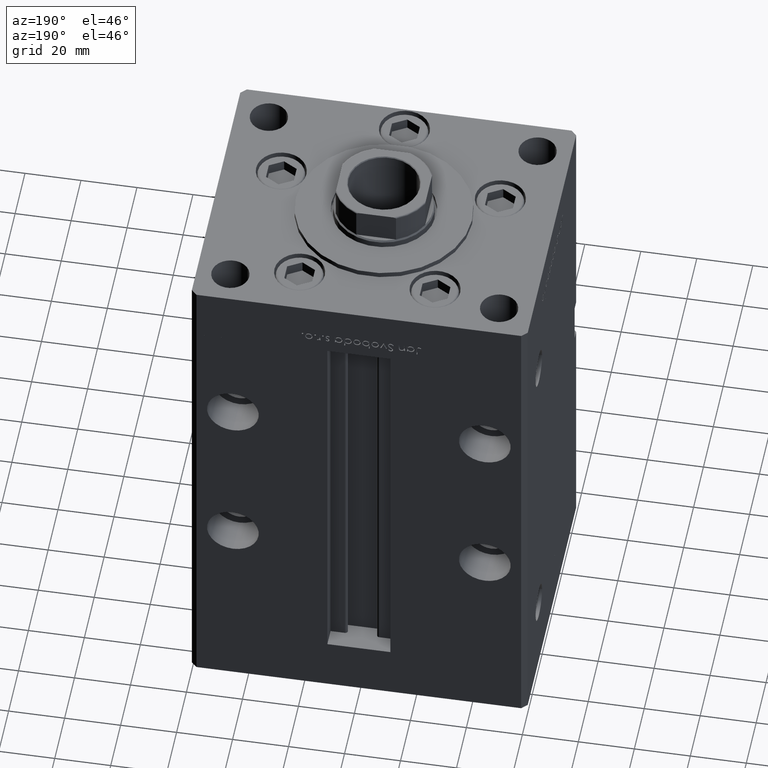
[diagram: clean part render]
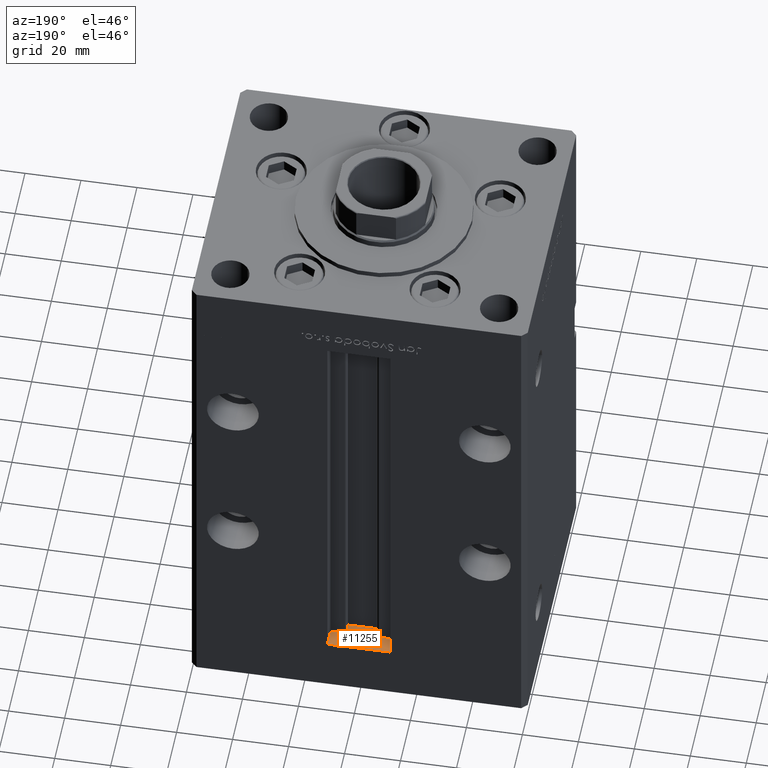
[diagram: same view with one face highlighted and labeled with its STEP entity id]
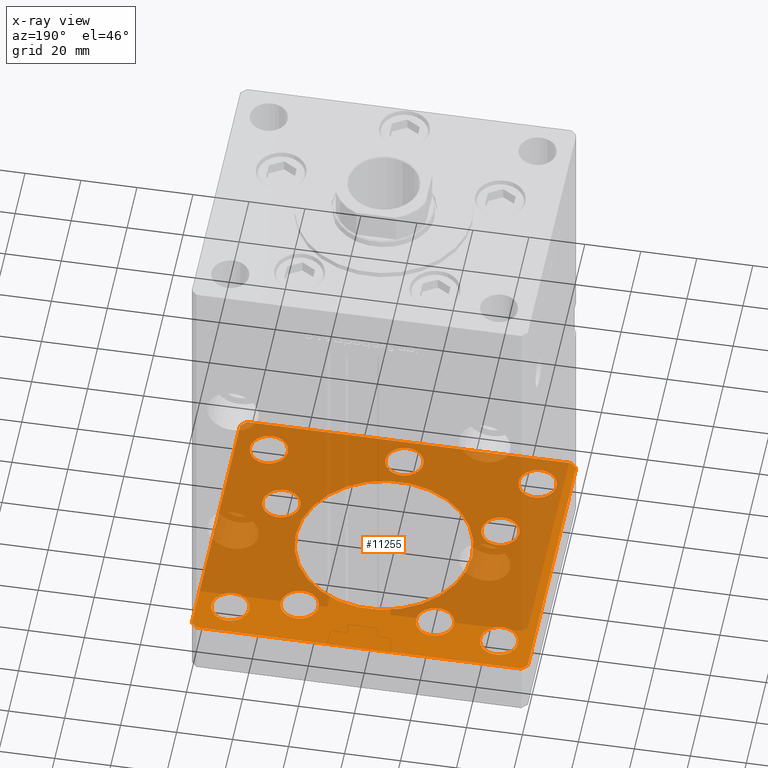
[diagram: x-ray of the same camera — body ghosted, the highlighted face saturated]
A machine part, auxiliary view. The second image highlights one B-rep face of the part: STEP entity #11255.
The next image is the same camera in x-ray: the body ghosted, the highlighted face saturated — about 74% of this face is hidden behind the body in this view.
In plain terms, the highlighted planar face has unit normal (0, 0, -1).
Its self-contained STEP definition (entity closure, byte-faithful):
#24 = DIRECTION ( 'NONE',  ( 0.000000000000000000, 0.000000000000000000, 1.000000000000000000 ) ) ;
#100 = VECTOR ( 'NONE', #38194, 1000.000000000000000 ) ;
#188 = ORIENTED_EDGE ( 'NONE', *, *, #35790, .F. ) ;
#264 = AXIS2_PLACEMENT_3D ( 'NONE', #34793, #51165, #10356 ) ;
#509 = AXIS2_PLACEMENT_3D ( 'NONE', #31123, #19309, #19577 ) ;
#772 = ORIENTED_EDGE ( 'NONE', *, *, #42279, .F. ) ;
#905 = CARTESIAN_POINT ( 'NONE',  ( -57.99999999999997868, -51.00000000000001421, -20.00000000000000000 ) ) ;
#957 = CARTESIAN_POINT ( 'NONE',  ( -57.99999999999997868, -51.00000000000001421, -20.00000000000000000 ) ) ;
#1073 = EDGE_CURVE ( 'NONE', #44712, #37887, #11297, .T. ) ;
#1766 = ORIENTED_EDGE ( 'NONE', *, *, #41484, .T. ) ;
#1906 = DIRECTION ( 'NONE',  ( 0.000000000000000000, -0.000000000000000000, -1.000000000000000000 ) ) ;
#2053 = CARTESIAN_POINT ( 'NONE',  ( 17.44288941894911460, 33.71875000000000711, -20.00000000000000000 ) ) ;
#2096 = VERTEX_POINT ( 'NONE', #44542 ) ;
#2157 = EDGE_LOOP ( 'NONE', ( #22757, #21681 ) ) ;
#2180 = ORIENTED_EDGE ( 'NONE', *, *, #7366, .F. ) ;
#2307 = CARTESIAN_POINT ( 'NONE',  ( 41.25000000000000000, -38.99999999999999289, -20.00000000000000000 ) ) ;
#2317 = CARTESIAN_POINT ( 'NONE',  ( -24.19288941894912170, 33.71875000000000000, -20.00000000000000000 ) ) ;
#2349 = CARTESIAN_POINT ( 'NONE',  ( 58.00000000000000000, -51.00000000000000711, -20.00000000000000000 ) ) ;
#2379 = CARTESIAN_POINT ( 'NONE',  ( -48.00000000000000000, 39.00000000000000000, -20.00000000000000000 ) ) ;
#2641 = DIRECTION ( 'NONE',  ( 1.000000000000000000, 0.000000000000000000, 0.000000000000000000 ) ) ;
#2689 = EDGE_CURVE ( 'NONE', #40068, #43463, #44611, .T. ) ;
#3042 = DIRECTION ( 'NONE',  ( -0.000000000000000000, 0.000000000000000000, 1.000000000000000000 ) ) ;
#3135 = EDGE_CURVE ( 'NONE', #35703, #47058, #24171, .T. ) ;
#3181 = CARTESIAN_POINT ( 'NONE',  ( -41.25000000000000000, 39.00000000000000000, -20.00000000000000000 ) ) ;
#3358 = VERTEX_POINT ( 'NONE', #957 ) ;
#3366 = CARTESIAN_POINT ( 'NONE',  ( -45.87657522565562829, -13.83333333333333925, -20.00000000000000000 ) ) ;
#3411 = DIRECTION ( 'NONE',  ( 1.000000000000000000, 0.000000000000000000, 0.000000000000000000 ) ) ;
#3587 = CARTESIAN_POINT ( 'NONE',  ( 24.19288941894911460, 33.71875000000000711, -20.00000000000000000 ) ) ;
#3784 = CARTESIAN_POINT ( 'NONE',  ( 48.00000000000000000, 38.99999999999999289, -20.00000000000000000 ) ) ;
#3849 = CARTESIAN_POINT ( 'NONE',  ( -41.25000000000000000, -39.00000000000000000, -20.00000000000000000 ) ) ;
#3933 = CIRCLE ( 'NONE', #39095, 6.749999999999999112 ) ;
#5103 = CARTESIAN_POINT ( 'NONE',  ( -60.00000000000000000, -49.00000000000000000, -20.00000000000000000 ) ) ;
#5191 = DIRECTION ( 'NONE',  ( 1.000000000000000000, 1.196361017915039486E-16, 0.000000000000000000 ) ) ;
#5240 = EDGE_CURVE ( 'NONE', #41855, #46311, #36227, .T. ) ;
#5451 = CARTESIAN_POINT ( 'NONE',  ( 41.25000000000000000, 38.99999999999999289, -20.00000000000000000 ) ) ;
#5731 = FACE_BOUND ( 'NONE', #35017, .T. ) ;
#5909 = EDGE_CURVE ( 'NONE', #7283, #19480, #44856, .T. ) ;
#5988 = FACE_OUTER_BOUND ( 'NONE', #40517, .T. ) ;
#6777 = EDGE_CURVE ( 'NONE', #41878, #15329, #33706, .T. ) ;
#6789 = DIRECTION ( 'NONE',  ( 1.000000000000000000, 0.000000000000000000, 0.000000000000000000 ) ) ;
#6946 = VECTOR ( 'NONE', #46435, 1000.000000000000000 ) ;
#7193 = CIRCLE ( 'NONE', #19197, 6.749999999999999112 ) ;
#7283 = VERTEX_POINT ( 'NONE', #31268 ) ;
#7366 = EDGE_CURVE ( 'NONE', #46311, #41855, #7193, .T. ) ;
#7787 = EDGE_LOOP ( 'NONE', ( #25484, #772 ) ) ;
#7874 = DIRECTION ( 'NONE',  ( 0.000000000000000000, -0.000000000000000000, -1.000000000000000000 ) ) ;
#7880 = AXIS2_PLACEMENT_3D ( 'NONE', #17164, #29777, #45608 ) ;
#7958 = DIRECTION ( 'NONE',  ( 0.000000000000000000, -0.000000000000000000, -1.000000000000000000 ) ) ;
#8141 = VECTOR ( 'NONE', #5191, 1000.000000000000000 ) ;
#8381 = DIRECTION ( 'NONE',  ( -0.7071067811865451302, -0.7071067811865500152, 0.000000000000000000 ) ) ;
#8589 = ORIENTED_EDGE ( 'NONE', *, *, #41616, .F. ) ;
#8793 = DIRECTION ( 'NONE',  ( 1.000000000000000000, 0.000000000000000000, 0.000000000000000000 ) ) ;
#9146 = CIRCLE ( 'NONE', #9985, 6.749999999999999112 ) ;
#9321 = EDGE_LOOP ( 'NONE', ( #36742, #25160 ) ) ;
#9579 = DIRECTION ( 'NONE',  ( 1.000000000000000000, 0.000000000000000000, 0.000000000000000000 ) ) ;
#9759 = FACE_BOUND ( 'NONE', #26075, .T. ) ;
#9770 = EDGE_LOOP ( 'NONE', ( #43090, #49249 ) ) ;
#9985 = AXIS2_PLACEMENT_3D ( 'NONE', #41573, #21971, #17953 ) ;
#10356 = DIRECTION ( 'NONE',  ( 1.000000000000000000, 0.000000000000000000, 0.000000000000000000 ) ) ;
#10854 = AXIS2_PLACEMENT_3D ( 'NONE', #13001, #45225, #49245 ) ;
#10995 = EDGE_CURVE ( 'NONE', #50977, #18654, #26889, .T. ) ;
#11035 = ORIENTED_EDGE ( 'NONE', *, *, #48628, .F. ) ;
#11255 = ADVANCED_FACE ( 'NONE', ( #5731, #30164, #9759, #26139, #22111, #38470, #34446, #14057, #5988, #36289, #40318 ), #48375, .F. ) ;
#11297 = CIRCLE ( 'NONE', #42126, 31.50000000000000000 ) ;
#12139 = VERTEX_POINT ( 'NONE', #13234 ) ;
#12511 = EDGE_CURVE ( 'NONE', #36815, #12139, #51784, .T. ) ;
#12797 = VERTEX_POINT ( 'NONE', #33495 ) ;
#13001 = CARTESIAN_POINT ( 'NONE',  ( 48.00000000000000000, -38.99999999999999289, -20.00000000000000000 ) ) ;
#13088 = CARTESIAN_POINT ( 'NONE',  ( 48.00000000000000000, 38.99999999999999289, -20.00000000000000000 ) ) ;
#13234 = CARTESIAN_POINT ( 'NONE',  ( -54.75000000000000000, -39.00000000000000000, -20.00000000000000000 ) ) ;
#13269 = EDGE_LOOP ( 'NONE', ( #2180, #24393 ) ) ;
#13465 = ORIENTED_EDGE ( 'NONE', *, *, #13600, .F. ) ;
#13600 = EDGE_CURVE ( 'NONE', #48527, #3358, #40230, .T. ) ;
#13873 = DIRECTION ( 'NONE',  ( 0.000000000000000000, -0.000000000000000000, -1.000000000000000000 ) ) ;
#14057 = FACE_BOUND ( 'NONE', #30440, .T. ) ;
#14224 = EDGE_CURVE ( 'NONE', #24590, #32459, #26965, .T. ) ;
#14550 = LINE ( 'NONE', #38690, #51619 ) ;
#14854 = CARTESIAN_POINT ( 'NONE',  ( 0.000000000000000000, 0.000000000000000000, -20.00000000000000000 ) ) ;
#15329 = VERTEX_POINT ( 'NONE', #5451 ) ;
#15521 = DIRECTION ( 'NONE',  ( 0.000000000000000000, -0.000000000000000000, -1.000000000000000000 ) ) ;
#15811 = AXIS2_PLACEMENT_3D ( 'NONE', #2317, #34016, #9579 ) ;
#15833 = AXIS2_PLACEMENT_3D ( 'NONE', #23388, #39220, #31718 ) ;
#15867 = DIRECTION ( 'NONE',  ( 1.000000000000000000, 0.000000000000000000, 0.000000000000000000 ) ) ;
#15986 = EDGE_CURVE ( 'NONE', #3358, #2096, #37407, .T. ) ;
#16301 = LINE ( 'NONE', #40993, #42658 ) ;
#16463 = CARTESIAN_POINT ( 'NONE',  ( 30.94288941894911105, 33.71875000000000711, -20.00000000000000000 ) ) ;
#16527 = AXIS2_PLACEMENT_3D ( 'NONE', #21663, #13873, #8793 ) ;
#16784 = CARTESIAN_POINT ( 'NONE',  ( 32.37657522565562829, -13.83333333333332860, -20.00000000000000000 ) ) ;
#17164 = CARTESIAN_POINT ( 'NONE',  ( 39.12657522565562829, -13.83333333333332860, -20.00000000000000000 ) ) ;
#17381 = DIRECTION ( 'NONE',  ( 1.000000000000000000, 0.000000000000000000, 0.000000000000000000 ) ) ;
#17430 = AXIS2_PLACEMENT_3D ( 'NONE', #3784, #24, #15867 ) ;
#17735 = CARTESIAN_POINT ( 'NONE',  ( -31.50000000000000000, 3.857637417314161900E-15, -20.00000000000000000 ) ) ;
#17911 = DIRECTION ( 'NONE',  ( 0.000000000000000000, 0.000000000000000000, 1.000000000000000000 ) ) ;
#17914 = DIRECTION ( 'NONE',  ( 0.000000000000000000, -0.000000000000000000, -1.000000000000000000 ) ) ;
#17921 = EDGE_LOOP ( 'NONE', ( #11035, #34445 ) ) ;
#17953 = DIRECTION ( 'NONE',  ( 1.000000000000000000, 0.000000000000000000, 0.000000000000000000 ) ) ;
#18441 = CIRCLE ( 'NONE', #37288, 6.749999999999999112 ) ;
#18527 = EDGE_CURVE ( 'NONE', #12139, #36815, #3933, .T. ) ;
#18602 = CARTESIAN_POINT ( 'NONE',  ( 59.99999999999994316, 49.00000000000000000, -20.00000000000000000 ) ) ;
#18654 = VERTEX_POINT ( 'NONE', #40310 ) ;
#18735 = LINE ( 'NONE', #2349, #43845 ) ;
#18988 = EDGE_CURVE ( 'NONE', #47058, #35703, #9146, .T. ) ;
#19197 = AXIS2_PLACEMENT_3D ( 'NONE', #3587, #7874, #36854 ) ;
#19309 = DIRECTION ( 'NONE',  ( -0.000000000000000000, -0.000000000000000000, -1.000000000000000000 ) ) ;
#19480 = VERTEX_POINT ( 'NONE', #3366 ) ;
#19577 = DIRECTION ( 'NONE',  ( -1.000000000000000000, 0.000000000000000000, 0.000000000000000000 ) ) ;
#19734 = ORIENTED_EDGE ( 'NONE', *, *, #12511, .F. ) ;
#21120 = CIRCLE ( 'NONE', #10854, 6.749999999999999112 ) ;
#21663 = CARTESIAN_POINT ( 'NONE',  ( -24.19288941894912170, 33.71875000000000000, -20.00000000000000000 ) ) ;
#21681 = ORIENTED_EDGE ( 'NONE', *, *, #18988, .F. ) ;
#21971 = DIRECTION ( 'NONE',  ( 0.000000000000000000, -0.000000000000000000, -1.000000000000000000 ) ) ;
#22111 = FACE_BOUND ( 'NONE', #13269, .T. ) ;
#22308 = CARTESIAN_POINT ( 'NONE',  ( 5.082284216461515748E-15, -41.50000000000000000, -20.00000000000000000 ) ) ;
#22464 = ORIENTED_EDGE ( 'NONE', *, *, #18527, .F. ) ;
#22757 = ORIENTED_EDGE ( 'NONE', *, *, #3135, .F. ) ;
#22781 = CARTESIAN_POINT ( 'NONE',  ( 31.50000000000000000, 0.000000000000000000, -20.00000000000000000 ) ) ;
#23388 = CARTESIAN_POINT ( 'NONE',  ( 5.082284216461515748E-15, -41.50000000000000000, -20.00000000000000000 ) ) ;
#23406 = EDGE_CURVE ( 'NONE', #48576, #12797, #16301, .T. ) ;
#23556 = DIRECTION ( 'NONE',  ( 0.7071067811865474617, 0.7071067811865474617, 0.000000000000000000 ) ) ;
#24016 = ORIENTED_EDGE ( 'NONE', *, *, #26817, .F. ) ;
#24171 = CIRCLE ( 'NONE', #7880, 6.749999999999999112 ) ;
#24212 = DIRECTION ( 'NONE',  ( -0.000000000000000000, -0.000000000000000000, -1.000000000000000000 ) ) ;
#24393 = ORIENTED_EDGE ( 'NONE', *, *, #5240, .F. ) ;
#24570 = VERTEX_POINT ( 'NONE', #32370 ) ;
#24590 = VERTEX_POINT ( 'NONE', #52756 ) ;
#25160 = ORIENTED_EDGE ( 'NONE', *, *, #34701, .F. ) ;
#25164 = AXIS2_PLACEMENT_3D ( 'NONE', #14854, #3042, #6789 ) ;
#25484 = ORIENTED_EDGE ( 'NONE', *, *, #5909, .F. ) ;
#25621 = ORIENTED_EDGE ( 'NONE', *, *, #23406, .F. ) ;
#25962 = CARTESIAN_POINT ( 'NONE',  ( -39.12657522565562829, -13.83333333333333925, -20.00000000000000000 ) ) ;
#26075 = EDGE_LOOP ( 'NONE', ( #188, #33027 ) ) ;
#26130 = VECTOR ( 'NONE', #53111, 1000.000000000000114 ) ;
#26139 = FACE_BOUND ( 'NONE', #2157, .T. ) ;
#26215 = EDGE_CURVE ( 'NONE', #12797, #43305, #43008, .T. ) ;
#26525 = EDGE_CURVE ( 'NONE', #43305, #40068, #38908, .T. ) ;
#26536 = ORIENTED_EDGE ( 'NONE', *, *, #1073, .F. ) ;
#26817 = EDGE_CURVE ( 'NONE', #2096, #48576, #18735, .T. ) ;
#26889 = CIRCLE ( 'NONE', #44054, 6.749999999999999112 ) ;
#26965 = CIRCLE ( 'NONE', #15811, 6.749999999999999112 ) ;
#27796 = DIRECTION ( 'NONE',  ( 1.000000000000000000, 0.000000000000000000, 0.000000000000000000 ) ) ;
#27860 = CARTESIAN_POINT ( 'NONE',  ( -30.94288941894911815, 33.71875000000000000, -20.00000000000000000 ) ) ;
#28127 = EDGE_CURVE ( 'NONE', #43463, #48527, #14550, .T. ) ;
#28371 = CARTESIAN_POINT ( 'NONE',  ( 0.000000000000000000, 0.000000000000000000, -20.00000000000000000 ) ) ;
#28580 = VERTEX_POINT ( 'NONE', #35006 ) ;
#28744 = DIRECTION ( 'NONE',  ( 0.000000000000000000, -0.000000000000000000, -1.000000000000000000 ) ) ;
#28755 = AXIS2_PLACEMENT_3D ( 'NONE', #2379, #39410, #2641 ) ;
#29596 = CIRCLE ( 'NONE', #28755, 6.749999999999999112 ) ;
#29777 = DIRECTION ( 'NONE',  ( 0.000000000000000000, -0.000000000000000000, -1.000000000000000000 ) ) ;
#30056 = ORIENTED_EDGE ( 'NONE', *, *, #26215, .F. ) ;
#30164 = FACE_BOUND ( 'NONE', #7787, .T. ) ;
#30327 = CARTESIAN_POINT ( 'NONE',  ( -48.00000000000000000, -39.00000000000000000, -20.00000000000000000 ) ) ;
#30435 = CIRCLE ( 'NONE', #48432, 31.50000000000000000 ) ;
#30440 = EDGE_LOOP ( 'NONE', ( #31769, #1766 ) ) ;
#30735 = CARTESIAN_POINT ( 'NONE',  ( 45.87657522565562829, -13.83333333333332860, -20.00000000000000000 ) ) ;
#31123 = CARTESIAN_POINT ( 'NONE',  ( 48.00000000000000000, -38.99999999999999289, -20.00000000000000000 ) ) ;
#31268 = CARTESIAN_POINT ( 'NONE',  ( -32.37657522565562829, -13.83333333333333925, -20.00000000000000000 ) ) ;
#31673 = CARTESIAN_POINT ( 'NONE',  ( 57.99999999999993605, 51.00000000000000711, -20.00000000000000000 ) ) ;
#31718 = DIRECTION ( 'NONE',  ( 1.000000000000000000, 0.000000000000000000, 0.000000000000000000 ) ) ;
#31769 = ORIENTED_EDGE ( 'NONE', *, *, #10995, .T. ) ;
#31823 = CARTESIAN_POINT ( 'NONE',  ( -48.00000000000000000, 39.00000000000000000, -20.00000000000000000 ) ) ;
#31906 = DIRECTION ( 'NONE',  ( 1.000000000000000000, 0.000000000000000000, 0.000000000000000000 ) ) ;
#32132 = CIRCLE ( 'NONE', #15833, 6.749999999999999112 ) ;
#32370 = CARTESIAN_POINT ( 'NONE',  ( 6.750000000000004441, -41.50000000000000000, -20.00000000000000000 ) ) ;
#32459 = VERTEX_POINT ( 'NONE', #27860 ) ;
#32547 = CARTESIAN_POINT ( 'NONE',  ( -57.99999999999999289, 50.99999999999997868, -20.00000000000000000 ) ) ;
#32710 = CARTESIAN_POINT ( 'NONE',  ( -60.00000000000000000, 48.99999999999995737, -20.00000000000000000 ) ) ;
#33027 = ORIENTED_EDGE ( 'NONE', *, *, #41186, .F. ) ;
#33495 = CARTESIAN_POINT ( 'NONE',  ( 59.99999999999994316, 49.00000000000000000, -20.00000000000000000 ) ) ;
#33706 = CIRCLE ( 'NONE', #17430, 6.749999999999999112 ) ;
#33781 = AXIS2_PLACEMENT_3D ( 'NONE', #30327, #41614, #50715 ) ;
#33782 = ORIENTED_EDGE ( 'NONE', *, *, #26525, .F. ) ;
#34016 = DIRECTION ( 'NONE',  ( 0.000000000000000000, -0.000000000000000000, -1.000000000000000000 ) ) ;
#34445 = ORIENTED_EDGE ( 'NONE', *, *, #50065, .F. ) ;
#34446 = FACE_BOUND ( 'NONE', #9770, .T. ) ;
#34460 = EDGE_LOOP ( 'NONE', ( #19734, #22464 ) ) ;
#34525 = CIRCLE ( 'NONE', #16527, 6.749999999999999112 ) ;
#34701 = EDGE_CURVE ( 'NONE', #32459, #24590, #34525, .T. ) ;
#34714 = EDGE_CURVE ( 'NONE', #15329, #41878, #46520, .T. ) ;
#34793 = CARTESIAN_POINT ( 'NONE',  ( 24.19288941894911460, 33.71875000000000711, -20.00000000000000000 ) ) ;
#35006 = CARTESIAN_POINT ( 'NONE',  ( 54.75000000000000000, -38.99999999999999289, -20.00000000000000000 ) ) ;
#35017 = EDGE_LOOP ( 'NONE', ( #26536, #8589 ) ) ;
#35426 = AXIS2_PLACEMENT_3D ( 'NONE', #25962, #17914, #46876 ) ;
#35655 = CARTESIAN_POINT ( 'NONE',  ( -6.749999999999993783, -41.50000000000000000, -20.00000000000000000 ) ) ;
#35703 = VERTEX_POINT ( 'NONE', #30735 ) ;
#35790 = EDGE_CURVE ( 'NONE', #24570, #39091, #49090, .T. ) ;
#36227 = CIRCLE ( 'NONE', #264, 6.749999999999999112 ) ;
#36289 = FACE_BOUND ( 'NONE', #17921, .T. ) ;
#36742 = ORIENTED_EDGE ( 'NONE', *, *, #14224, .F. ) ;
#36815 = VERTEX_POINT ( 'NONE', #3849 ) ;
#36854 = DIRECTION ( 'NONE',  ( 1.000000000000000000, 0.000000000000000000, 0.000000000000000000 ) ) ;
#37033 = VECTOR ( 'NONE', #8381, 1000.000000000000114 ) ;
#37288 = AXIS2_PLACEMENT_3D ( 'NONE', #45633, #28744, #45114 ) ;
#37407 = LINE ( 'NONE', #905, #8141 ) ;
#37887 = VERTEX_POINT ( 'NONE', #17735 ) ;
#38106 = CARTESIAN_POINT ( 'NONE',  ( 60.00000000000001421, -48.99999999999999289, -20.00000000000000000 ) ) ;
#38194 = DIRECTION ( 'NONE',  ( -0.7071067811865487940, 0.7071067811865463515, 0.000000000000000000 ) ) ;
#38470 = FACE_BOUND ( 'NONE', #9321, .T. ) ;
#38690 = CARTESIAN_POINT ( 'NONE',  ( -60.00000000000000000, 48.99999999999995737, -20.00000000000000000 ) ) ;
#38908 = LINE ( 'NONE', #42683, #6946 ) ;
#39091 = VERTEX_POINT ( 'NONE', #35655 ) ;
#39095 = AXIS2_PLACEMENT_3D ( 'NONE', #49432, #24212, #49163 ) ;
#39220 = DIRECTION ( 'NONE',  ( 0.000000000000000000, -0.000000000000000000, -1.000000000000000000 ) ) ;
#39231 = DIRECTION ( 'NONE',  ( 0.000000000000000000, -1.000000000000000000, 0.000000000000000000 ) ) ;
#39410 = DIRECTION ( 'NONE',  ( 0.000000000000000000, 0.000000000000000000, 1.000000000000000000 ) ) ;
#39664 = AXIS2_PLACEMENT_3D ( 'NONE', #22308, #1906, #49708 ) ;
#39805 = ORIENTED_EDGE ( 'NONE', *, *, #15986, .F. ) ;
#40068 = VERTEX_POINT ( 'NONE', #52503 ) ;
#40127 = DIRECTION ( 'NONE',  ( 0.000000000000000000, 0.000000000000000000, 1.000000000000000000 ) ) ;
#40230 = LINE ( 'NONE', #52584, #26130 ) ;
#40310 = CARTESIAN_POINT ( 'NONE',  ( -54.75000000000000000, 39.00000000000000000, -20.00000000000000000 ) ) ;
#40318 = FACE_BOUND ( 'NONE', #34460, .T. ) ;
#40517 = EDGE_LOOP ( 'NONE', ( #13465, #50156, #41682, #33782, #30056, #25621, #24016, #39805 ) ) ;
#40993 = CARTESIAN_POINT ( 'NONE',  ( 60.00000000000001421, -48.99999999999999289, -20.00000000000000000 ) ) ;
#41186 = EDGE_CURVE ( 'NONE', #39091, #24570, #32132, .T. ) ;
#41385 = AXIS2_PLACEMENT_3D ( 'NONE', #13088, #17911, #17381 ) ;
#41484 = EDGE_CURVE ( 'NONE', #18654, #50977, #29596, .T. ) ;
#41573 = CARTESIAN_POINT ( 'NONE',  ( 39.12657522565562829, -13.83333333333332860, -20.00000000000000000 ) ) ;
#41614 = DIRECTION ( 'NONE',  ( -0.000000000000000000, -0.000000000000000000, -1.000000000000000000 ) ) ;
#41616 = EDGE_CURVE ( 'NONE', #37887, #44712, #30435, .T. ) ;
#41651 = CIRCLE ( 'NONE', #509, 6.749999999999999112 ) ;
#41682 = ORIENTED_EDGE ( 'NONE', *, *, #2689, .F. ) ;
#41855 = VERTEX_POINT ( 'NONE', #2053 ) ;
#41878 = VERTEX_POINT ( 'NONE', #42841 ) ;
#42126 = AXIS2_PLACEMENT_3D ( 'NONE', #28371, #7958, #3411 ) ;
#42279 = EDGE_CURVE ( 'NONE', #19480, #7283, #18441, .T. ) ;
#42658 = VECTOR ( 'NONE', #52549, 1000.000000000000000 ) ;
#42683 = CARTESIAN_POINT ( 'NONE',  ( 57.99999999999993605, 51.00000000000000711, -20.00000000000000000 ) ) ;
#42841 = CARTESIAN_POINT ( 'NONE',  ( 54.75000000000000000, 38.99999999999999289, -20.00000000000000000 ) ) ;
#43008 = LINE ( 'NONE', #18602, #100 ) ;
#43090 = ORIENTED_EDGE ( 'NONE', *, *, #6777, .T. ) ;
#43305 = VERTEX_POINT ( 'NONE', #31673 ) ;
#43463 = VERTEX_POINT ( 'NONE', #32710 ) ;
#43845 = VECTOR ( 'NONE', #23556, 1000.000000000000114 ) ;
#44054 = AXIS2_PLACEMENT_3D ( 'NONE', #31823, #40127, #27796 ) ;
#44542 = CARTESIAN_POINT ( 'NONE',  ( 58.00000000000000000, -51.00000000000000711, -20.00000000000000000 ) ) ;
#44611 = LINE ( 'NONE', #32547, #37033 ) ;
#44712 = VERTEX_POINT ( 'NONE', #22781 ) ;
#44856 = CIRCLE ( 'NONE', #35426, 6.749999999999999112 ) ;
#45114 = DIRECTION ( 'NONE',  ( 1.000000000000000000, 0.000000000000000000, 0.000000000000000000 ) ) ;
#45225 = DIRECTION ( 'NONE',  ( -0.000000000000000000, -0.000000000000000000, -1.000000000000000000 ) ) ;
#45608 = DIRECTION ( 'NONE',  ( 1.000000000000000000, 0.000000000000000000, 0.000000000000000000 ) ) ;
#45633 = CARTESIAN_POINT ( 'NONE',  ( -39.12657522565562829, -13.83333333333333925, -20.00000000000000000 ) ) ;
#46311 = VERTEX_POINT ( 'NONE', #16463 ) ;
#46435 = DIRECTION ( 'NONE',  ( -1.000000000000000000, -2.392722035830079958E-16, 0.000000000000000000 ) ) ;
#46520 = CIRCLE ( 'NONE', #41385, 6.749999999999999112 ) ;
#46728 = VERTEX_POINT ( 'NONE', #2307 ) ;
#46876 = DIRECTION ( 'NONE',  ( 1.000000000000000000, 0.000000000000000000, 0.000000000000000000 ) ) ;
#47058 = VERTEX_POINT ( 'NONE', #16784 ) ;
#48375 = PLANE ( 'NONE',  #25164 ) ;
#48432 = AXIS2_PLACEMENT_3D ( 'NONE', #52297, #15521, #31906 ) ;
#48527 = VERTEX_POINT ( 'NONE', #5103 ) ;
#48576 = VERTEX_POINT ( 'NONE', #38106 ) ;
#48628 = EDGE_CURVE ( 'NONE', #28580, #46728, #41651, .T. ) ;
#49090 = CIRCLE ( 'NONE', #39664, 6.749999999999999112 ) ;
#49163 = DIRECTION ( 'NONE',  ( -1.000000000000000000, 0.000000000000000000, 0.000000000000000000 ) ) ;
#49245 = DIRECTION ( 'NONE',  ( -1.000000000000000000, 0.000000000000000000, 0.000000000000000000 ) ) ;
#49249 = ORIENTED_EDGE ( 'NONE', *, *, #34714, .T. ) ;
#49432 = CARTESIAN_POINT ( 'NONE',  ( -48.00000000000000000, -39.00000000000000000, -20.00000000000000000 ) ) ;
#49708 = DIRECTION ( 'NONE',  ( 1.000000000000000000, 0.000000000000000000, 0.000000000000000000 ) ) ;
#50065 = EDGE_CURVE ( 'NONE', #46728, #28580, #21120, .T. ) ;
#50156 = ORIENTED_EDGE ( 'NONE', *, *, #28127, .F. ) ;
#50715 = DIRECTION ( 'NONE',  ( -1.000000000000000000, 0.000000000000000000, 0.000000000000000000 ) ) ;
#50977 = VERTEX_POINT ( 'NONE', #3181 ) ;
#51165 = DIRECTION ( 'NONE',  ( 0.000000000000000000, -0.000000000000000000, -1.000000000000000000 ) ) ;
#51619 = VECTOR ( 'NONE', #39231, 1000.000000000000000 ) ;
#51784 = CIRCLE ( 'NONE', #33781, 6.749999999999999112 ) ;
#52297 = CARTESIAN_POINT ( 'NONE',  ( 0.000000000000000000, 0.000000000000000000, -20.00000000000000000 ) ) ;
#52503 = CARTESIAN_POINT ( 'NONE',  ( -57.99999999999999289, 50.99999999999997868, -20.00000000000000000 ) ) ;
#52549 = DIRECTION ( 'NONE',  ( -7.080503983578803823E-16, 1.000000000000000000, 0.000000000000000000 ) ) ;
#52584 = CARTESIAN_POINT ( 'NONE',  ( -60.00000000000000000, -49.00000000000000000, -20.00000000000000000 ) ) ;
#52756 = CARTESIAN_POINT ( 'NONE',  ( -17.44288941894912170, 33.71875000000000000, -20.00000000000000000 ) ) ;
#53111 = DIRECTION ( 'NONE',  ( 0.7071067811865474617, -0.7071067811865474617, 0.000000000000000000 ) ) ;